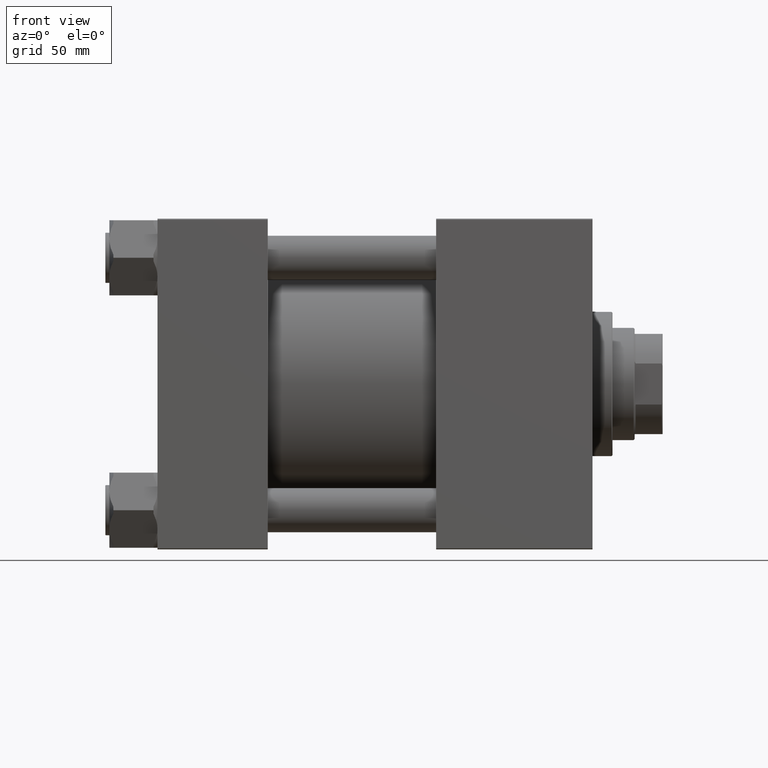
[diagram: clean part render]
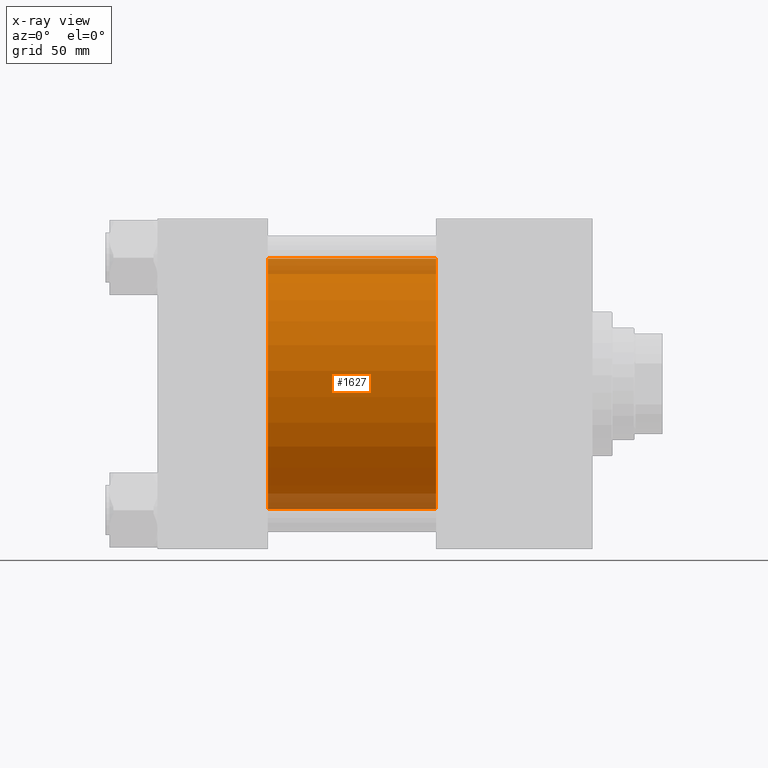
[diagram: x-ray — body ghosted, one internal face saturated and labeled with its STEP entity id]
A machine part, front view, then the same camera in x-ray: the body is ghosted and one INTERNAL B-rep face — a face not visible from any outside direction — is saturated and labeled: STEP entity #1627.
In plain terms, the highlighted cylindrical surface (partial cylindrical patch) has radius 62.5 mm, axis along (-1, -0, -0).
Its self-contained STEP definition (entity closure, byte-faithful):
#143 = ORIENTED_EDGE ( 'NONE', *, *, #7241, .F. ) ;
#594 = CARTESIAN_POINT ( 'NONE',  ( 55.00000000000000000, 5.051957280705745584E-15, -62.50000000000000000 ) ) ;
#1627 = ADVANCED_FACE ( 'NONE', ( #2548 ), #38484, .F. ) ;
#2215 = ORIENTED_EDGE ( 'NONE', *, *, #7509, .F. ) ;
#2548 = FACE_OUTER_BOUND ( 'NONE', #19264, .T. ) ;
#3020 = DIRECTION ( 'NONE',  ( 0.000000000000000000, 0.000000000000000000, -1.000000000000000000 ) ) ;
#4931 = VERTEX_POINT ( 'NONE', #14936 ) ;
#6157 = DIRECTION ( 'NONE',  ( 0.000000000000000000, 0.000000000000000000, 1.000000000000000000 ) ) ;
#7241 = EDGE_CURVE ( 'NONE', #36034, #4931, #19005, .T. ) ;
#7509 = EDGE_CURVE ( 'NONE', #4931, #27669, #36541, .T. ) ;
#7700 = EDGE_CURVE ( 'NONE', #7944, #27669, #39731, .T. ) ;
#7944 = VERTEX_POINT ( 'NONE', #36085 ) ;
#9089 = CARTESIAN_POINT ( 'NONE',  ( 139.0000000000000000, -2.602085213965210642E-15, 0.000000000000000000 ) ) ;
#14115 = CARTESIAN_POINT ( 'NONE',  ( 139.0000000000000000, -2.602085213965210642E-15, 0.000000000000000000 ) ) ;
#14936 = CARTESIAN_POINT ( 'NONE',  ( 55.00000000000000000, -2.602085213965210642E-15, 62.50000000000000000 ) ) ;
#16630 = DIRECTION ( 'NONE',  ( -1.000000000000000000, -0.000000000000000000, -0.000000000000000000 ) ) ;
#18193 = CARTESIAN_POINT ( 'NONE',  ( 55.00000000000000000, -2.602085213965210642E-15, 0.000000000000000000 ) ) ;
#18221 = DIRECTION ( 'NONE',  ( -1.000000000000000000, -0.000000000000000000, -0.000000000000000000 ) ) ;
#19005 = LINE ( 'NONE', #34680, #38972 ) ;
#19264 = EDGE_LOOP ( 'NONE', ( #20103, #31400, #2215, #143 ) ) ;
#20103 = ORIENTED_EDGE ( 'NONE', *, *, #35497, .T. ) ;
#20724 = CARTESIAN_POINT ( 'NONE',  ( 139.0000000000000000, 5.051957280705745584E-15, -62.50000000000000000 ) ) ;
#23745 = CIRCLE ( 'NONE', #46655, 62.50000000000000000 ) ;
#26207 = DIRECTION ( 'NONE',  ( -1.000000000000000000, -0.000000000000000000, -0.000000000000000000 ) ) ;
#27669 = VERTEX_POINT ( 'NONE', #594 ) ;
#30001 = DIRECTION ( 'NONE',  ( 1.000000000000000000, 0.000000000000000000, 0.000000000000000000 ) ) ;
#31400 = ORIENTED_EDGE ( 'NONE', *, *, #7700, .T. ) ;
#34680 = CARTESIAN_POINT ( 'NONE',  ( 139.0000000000000000, -2.602085213965210642E-15, 62.50000000000000000 ) ) ;
#35497 = EDGE_CURVE ( 'NONE', #36034, #7944, #23745, .T. ) ;
#36034 = VERTEX_POINT ( 'NONE', #47356 ) ;
#36085 = CARTESIAN_POINT ( 'NONE',  ( 139.0000000000000000, 5.051957280705745584E-15, -62.50000000000000000 ) ) ;
#36541 = CIRCLE ( 'NONE', #43073, 62.50000000000000000 ) ;
#38484 = CYLINDRICAL_SURFACE ( 'NONE', #39130, 62.50000000000000000 ) ;
#38972 = VECTOR ( 'NONE', #26207, 1000.000000000000000 ) ;
#39130 = AXIS2_PLACEMENT_3D ( 'NONE', #14115, #18221, #6157 ) ;
#39731 = LINE ( 'NONE', #20724, #48051 ) ;
#43073 = AXIS2_PLACEMENT_3D ( 'NONE', #18193, #30001, #3020 ) ;
#46655 = AXIS2_PLACEMENT_3D ( 'NONE', #9089, #47835, #47583 ) ;
#47356 = CARTESIAN_POINT ( 'NONE',  ( 139.0000000000000000, -2.602085213965210642E-15, 62.50000000000000000 ) ) ;
#47583 = DIRECTION ( 'NONE',  ( 0.000000000000000000, 0.000000000000000000, -1.000000000000000000 ) ) ;
#47835 = DIRECTION ( 'NONE',  ( 1.000000000000000000, 0.000000000000000000, 0.000000000000000000 ) ) ;
#48051 = VECTOR ( 'NONE', #16630, 1000.000000000000000 ) ;